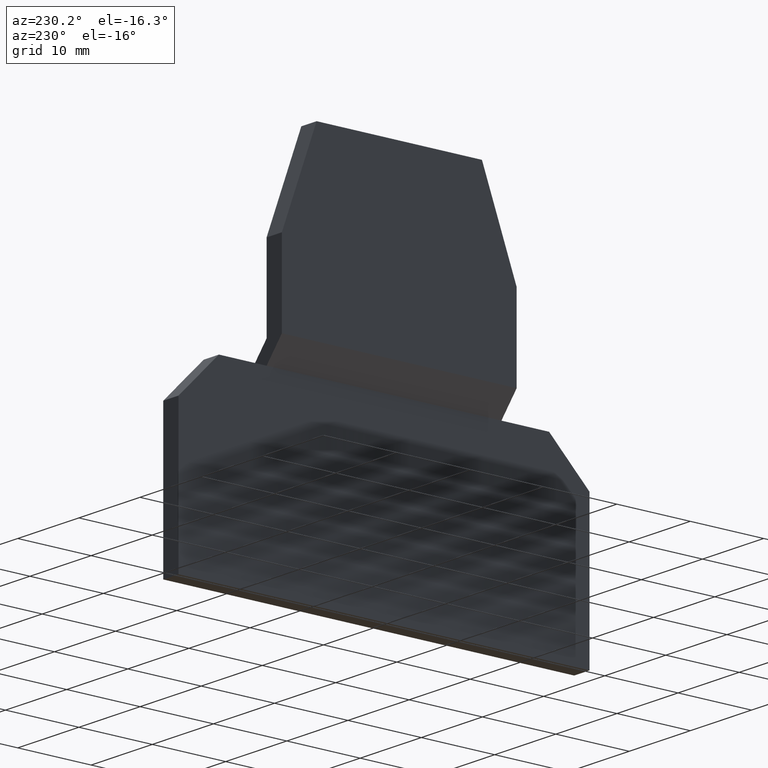
[diagram: clean part render]
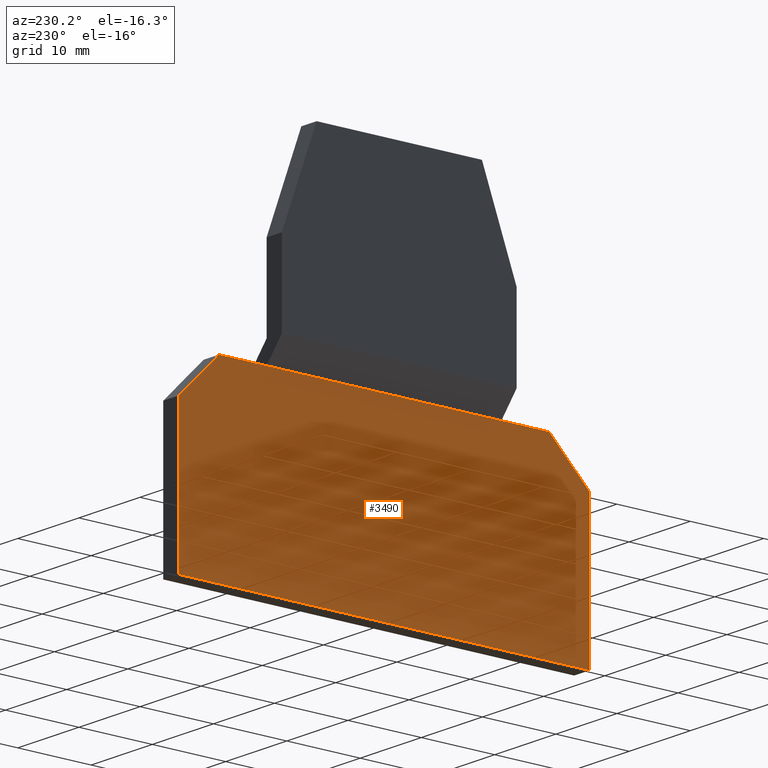
[diagram: same view with one face highlighted and labeled with its STEP entity id]
A machine part, auxiliary view. The second image highlights one B-rep face of the part: STEP entity #3490.
In plain terms, the highlighted planar face has unit normal (1, 0, 0).
Its self-contained STEP definition (entity closure, byte-faithful):
#670=CARTESIAN_POINT('',(38.6615379999999,31.630769,-2.5));
#680=VERTEX_POINT('',#670);
#710=CARTESIAN_POINT('',(0.,31.630769,-2.5));
#720=DIRECTION('',(-1.,0.,0.));
#730=VECTOR('',#720,1.);
#740=LINE('',#710,#730);
#750=CARTESIAN_POINT('',(6.66153799999999,31.630769,-2.5));
#760=VERTEX_POINT('',#750);
#770=EDGE_CURVE('',#680,#760,#740,.T.);
#1980=CARTESIAN_POINT('',(0.161537999999886,31.630769,-2.5));
#1990=VERTEX_POINT('',#1980);
#2020=CARTESIAN_POINT('',(0.,31.4692310000001,-2.5));
#2030=DIRECTION('',(-0.707106781186548,-0.707106781186547,0.));
#2040=VECTOR('',#2030,1.);
#2050=LINE('',#2020,#2040);
#2060=CARTESIAN_POINT('',(-5.33846200000001,26.1307689999998,-2.5));
#2070=VERTEX_POINT('',#2060);
#2080=EDGE_CURVE('',#1990,#2070,#2050,.T.);
#2960=CARTESIAN_POINT('',(3.25686670547196,24.4393485462809,-2.5));
#2970=DIRECTION('',(0.,0.,-1.));
#2980=DIRECTION('',(-1.,0.,0.));
#2990=AXIS2_PLACEMENT_3D('',#2960,#2970,#2980);
#3000=PLANE('',#2990);
#3010=CARTESIAN_POINT('',(-5.33846200000001,0.,-2.5));
#3020=DIRECTION('',(0.,-1.,0.));
#3030=VECTOR('',#3020,1.);
#3040=LINE('',#3010,#3030);
#3050=CARTESIAN_POINT('',(-5.33846200000001,6.630769,-2.5));
#3060=VERTEX_POINT('',#3050);
#3070=EDGE_CURVE('',#2070,#3060,#3040,.T.);
#3080=ORIENTED_EDGE('',*,*,#3070,.T.);
#3090=ORIENTED_EDGE('',*,*,#2080,.T.);
#3100=CARTESIAN_POINT('',(0.,31.630769,-2.5));
#3110=DIRECTION('',(-1.,0.,0.));
#3120=VECTOR('',#3110,1.);
#3130=LINE('',#3100,#3120);
#3140=EDGE_CURVE('',#760,#1990,#3130,.T.);
#3150=ORIENTED_EDGE('',*,*,#3140,.T.);
#3160=ORIENTED_EDGE('',*,*,#770,.T.);
#3170=CARTESIAN_POINT('',(0.,31.630769,-2.5));
#3180=DIRECTION('',(-1.,0.,0.));
#3190=VECTOR('',#3180,1.);
#3200=LINE('',#3170,#3190);
#3210=CARTESIAN_POINT('',(45.161538,31.630769,-2.5));
#3220=VERTEX_POINT('',#3210);
#3230=EDGE_CURVE('',#3220,#680,#3200,.T.);
#3240=ORIENTED_EDGE('',*,*,#3230,.T.);
#3250=CARTESIAN_POINT('',(0.,76.792307,-2.5));
#3260=DIRECTION('',(-0.707106781186548,0.707106781186547,0.));
#3270=VECTOR('',#3260,1.);
#3280=LINE('',#3250,#3270);
#3290=CARTESIAN_POINT('',(50.661538,26.130769,-2.5));
#3300=VERTEX_POINT('',#3290);
#3310=EDGE_CURVE('',#3300,#3220,#3280,.T.);
#3320=ORIENTED_EDGE('',*,*,#3310,.T.);
#3330=CARTESIAN_POINT('',(50.661538,0.,-2.5));
#3340=DIRECTION('',(0.,1.,0.));
#3350=VECTOR('',#3340,1.);
#3360=LINE('',#3330,#3350);
#3370=CARTESIAN_POINT('',(50.661538,6.630769,-2.5));
#3380=VERTEX_POINT('',#3370);
#3390=EDGE_CURVE('',#3380,#3300,#3360,.T.);
#3400=ORIENTED_EDGE('',*,*,#3390,.T.);
#3410=CARTESIAN_POINT('',(0.,6.630769,-2.5));
#3420=DIRECTION('',(1.,0.,0.));
#3430=VECTOR('',#3420,1.);
#3440=LINE('',#3410,#3430);
#3450=EDGE_CURVE('',#3060,#3380,#3440,.T.);
#3460=ORIENTED_EDGE('',*,*,#3450,.T.);
#3470=EDGE_LOOP('',(#3460,#3400,#3320,#3240,#3160,#3150,#3090,#3080));
#3480=FACE_OUTER_BOUND('',#3470,.T.);
#3490=ADVANCED_FACE('',(#3480),#3000,.F.);